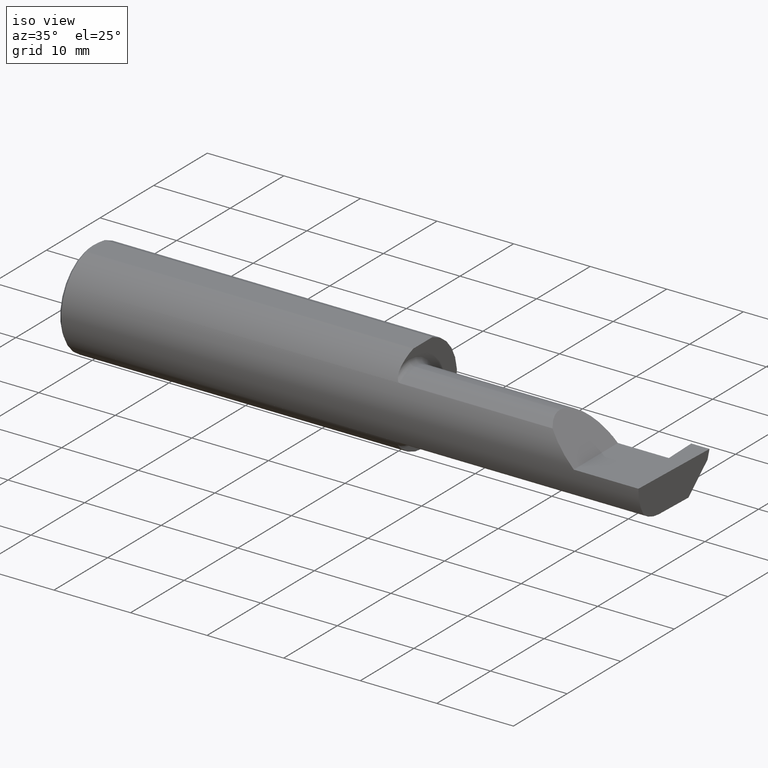
[diagram: clean part render]
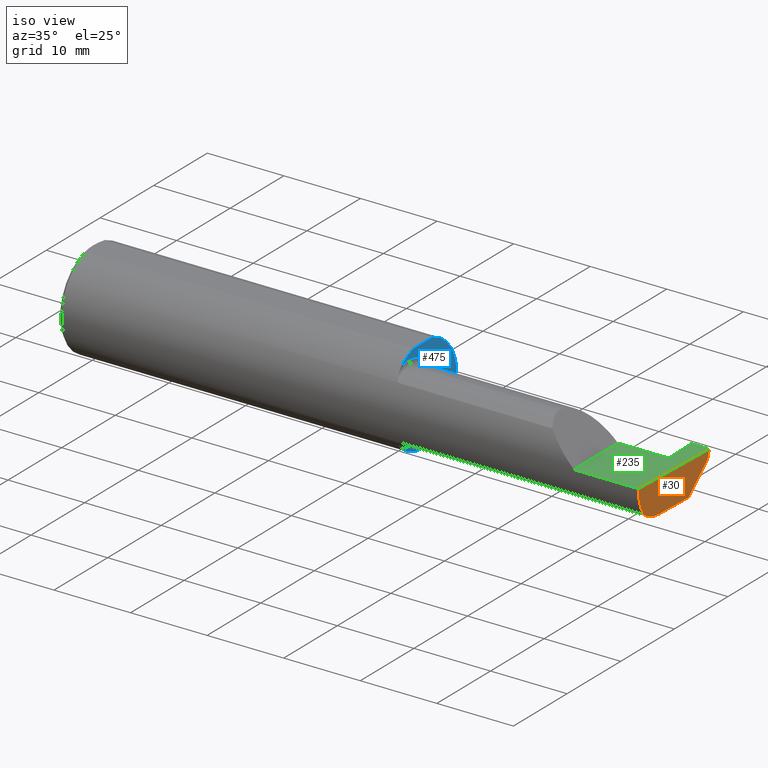
[diagram: same view with three faces highlighted in distinct colors, each labeled with its STEP entity id]
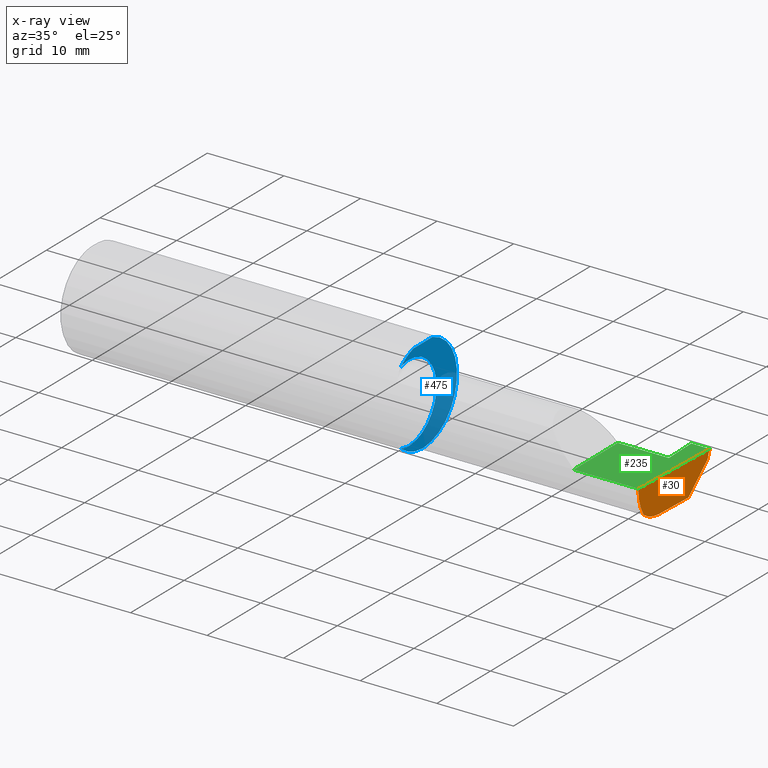
[diagram: x-ray of the same camera — body ghosted, the three highlighted faces saturated]
A machine part, iso view with three faces highlighted in distinct colors.
The next image is the same camera in x-ray (body ghosted, the three faces saturated) — at least one of them is partly hidden behind the body in this view.
Their STEP definitions:

[orange] entity #30 — the highlighted planar face has unit normal (-0.999, 0.0349, 0.0262).
#10 = VERTEX_POINT ( 'NONE', #298 ) ;
#16 = ORIENTED_EDGE ( 'NONE', *, *, #224, .F. ) ;
#27 = LINE ( 'NONE', #140, #619 ) ;
#29 = CARTESIAN_POINT ( 'NONE',  ( 2.980479240051444378, -0.2080850024789291652, -0.1382955322609665250 ) ) ;
#30 = ADVANCED_FACE ( 'NONE', ( #419 ), #537, .F. ) ;
#46 = LINE ( 'NONE', #345, #548 ) ;
#53 = VERTEX_POINT ( 'NONE', #120 ) ;
#67 = EDGE_LOOP ( 'NONE', ( #655, #480, #408, #16, #479, #90, #302 ) ) ;
#84 = CARTESIAN_POINT ( 'NONE',  ( 2.982632426700501327, -0.2498495826666993214, -0.0004566631977791965049 ) ) ;
#90 = ORIENTED_EDGE ( 'NONE', *, *, #397, .F. ) ;
#94 = AXIS2_PLACEMENT_3D ( 'NONE', #291, #773, #469 ) ;
#97 = VERTEX_POINT ( 'NONE', #546 ) ;
#109 = DIRECTION ( 'NONE',  ( 0.02616100201822768243, -0.0009135623211515312911, 0.9996573249755575929 ) ) ;
#120 = CARTESIAN_POINT ( 'NONE',  ( 2.982644377562602589, -0.2498499999999999610, 1.813681607540488003E-17 ) ) ;
#140 = CARTESIAN_POINT ( 'NONE',  ( 2.999793790066964672, 0.2455961323656265238, -0.005799112959718751882 ) ) ;
#147 = VECTOR ( 'NONE', #637, 39.37007874015748854 ) ;
#148 = EDGE_CURVE ( 'NONE', #370, #10, #176, .T. ) ;
#149 = DIRECTION ( 'NONE',  ( -0.03432699337968036363, -0.2586665114180216052, -0.9653565628286482347 ) ) ;
#156 = CARTESIAN_POINT ( 'NONE',  ( 2.982660284539054629, -0.2493944837933358694, 2.123502703737254632E-18 ) ) ;
#176 = LINE ( 'NONE', #210, #147 ) ;
#210 = CARTESIAN_POINT ( 'NONE',  ( 2.993019781838999194, 0.1785693626775286258, -0.1750000000000000444 ) ) ;
#218 = CARTESIAN_POINT ( 'NONE',  ( 2.990479469570817006, 0.1058243371481679268, -0.1749999999999999889 ) ) ;
#224 = EDGE_CURVE ( 'NONE', #97, #673, #27, .T. ) ;
#276 = CARTESIAN_POINT ( 'NONE',  ( 2.998364291748493393, 0.2348243371481683328, -0.04599999999999999922 ) ) ;
#287 = CARTESIAN_POINT ( 'NONE',  ( 2.981341028891337785, -0.2497592792593336664, -0.04986346618389509572 ) ) ;
#291 = CARTESIAN_POINT ( 'NONE',  ( 2.994767799596354418, 0.2473327124642303587, -0.1999314649951115241 ) ) ;
#298 = CARTESIAN_POINT ( 'NONE',  ( 2.983262242683407006, -0.1008499999999999674, -0.1749999999999999889 ) ) ;
#302 = ORIENTED_EDGE ( 'NONE', *, *, #684, .F. ) ;
#310 = VECTOR ( 'NONE', #797, 39.37007874015748143 ) ;
#328 = CARTESIAN_POINT ( 'NONE',  ( 2.982632426700501327, -0.2498495826666993214, -0.0004566631977791965049 ) ) ;
#345 = CARTESIAN_POINT ( 'NONE',  ( 2.977412177158956563, -0.2496672875357696664, -0.1999314649951114686 ) ) ;
#365 =( BOUNDED_CURVE ( )  B_SPLINE_CURVE ( 3, ( #758, #402, #287, #84 ),
 .UNSPECIFIED., .F., .T. ) 
 B_SPLINE_CURVE_WITH_KNOTS ( ( 4, 4 ),
 ( 0.05713034791898994463, 0.6418805321922130824 ),
 .UNSPECIFIED. ) 
 CURVE ( )  GEOMETRIC_REPRESENTATION_ITEM ( )  RATIONAL_B_SPLINE_CURVE ( ( 1.000000000000000000, 0.9717080070095575062, 0.9717080070095575062, 1.000000000000000000 ) ) 
 REPRESENTATION_ITEM ( '' )  );
#370 = VERTEX_POINT ( 'NONE', #218 ) ;
#397 = EDGE_CURVE ( 'NONE', #531, #53, #46, .T. ) ;
#402 = CARTESIAN_POINT ( 'NONE',  ( 2.980602402804240381, -0.2354324170447263109, -0.09714751587401684874 ) ) ;
#408 = ORIENTED_EDGE ( 'NONE', *, *, #430, .F. ) ;
#419 = FACE_OUTER_BOUND ( 'NONE', #67, .T. ) ;
#424 = VERTEX_POINT ( 'NONE', #543 ) ;
#430 = EDGE_CURVE ( 'NONE', #673, #370, #612, .T. ) ;
#453 = EDGE_CURVE ( 'NONE', #53, #97, #553, .T. ) ;
#469 = DIRECTION ( 'NONE',  ( -0.03489949670249940100, -0.9993908270190957621, 0.000000000000000000 ) ) ;
#479 = ORIENTED_EDGE ( 'NONE', *, *, #453, .F. ) ;
#480 = ORIENTED_EDGE ( 'NONE', *, *, #148, .F. ) ;
#516 = CARTESIAN_POINT ( 'NONE',  ( 2.981893741990786495, -0.1400387324517231025, -0.1750000000000000167 ) ) ;
#527 = CARTESIAN_POINT ( 'NONE',  ( 2.983262242683407006, -0.1008499999999999674, -0.1749999999999999889 ) ) ;
#531 = VERTEX_POINT ( 'NONE', #328 ) ;
#537 = PLANE ( 'NONE',  #94 ) ;
#543 = CARTESIAN_POINT ( 'NONE',  ( 2.980479240051444378, -0.2080850024789291652, -0.1382955322609665250 ) ) ;
#546 = CARTESIAN_POINT ( 'NONE',  ( 3.000000000000000444, 0.2471499999999999531, -7.549931466865102584E-16 ) ) ;
#548 = VECTOR ( 'NONE', #109, 39.37007874015748854 ) ;
#553 = LINE ( 'NONE', #156, #310 ) ;
#586 = CARTESIAN_POINT ( 'NONE',  ( 2.980931506555613453, -0.1771157075472509779, -0.1623092683844330475 ) ) ;
#597 = CARTESIAN_POINT ( 'NONE',  ( 2.998041052908566595, 0.2295359730721147906, -0.05128836407605352060 ) ) ;
#612 = LINE ( 'NONE', #597, #778 ) ;
#619 = VECTOR ( 'NONE', #149, 39.37007874015748854 ) ;
#637 = DIRECTION ( 'NONE',  ( -0.03489949670249939406, -0.9993908270190957621, 2.445004146800611929E-16 ) ) ;
#655 = ORIENTED_EDGE ( 'NONE', *, *, #698, .T. ) ;
#673 = VERTEX_POINT ( 'NONE', #276 ) ;
#684 = EDGE_CURVE ( 'NONE', #424, #531, #365, .T. ) ;
#698 = EDGE_CURVE ( 'NONE', #424, #10, #709, .T. ) ;
#709 =( BOUNDED_CURVE ( )  B_SPLINE_CURVE ( 3, ( #29, #586, #516, #527 ),
 .UNSPECIFIED., .F., .F. ) 
 B_SPLINE_CURVE_WITH_KNOTS ( ( 4, 4 ),
 ( 0.2675252011803429530, 0.9270880441442505004 ),
 .UNSPECIFIED. ) 
 CURVE ( )  GEOMETRIC_REPRESENTATION_ITEM ( )  RATIONAL_B_SPLINE_CURVE ( ( 1.000000000000000000, 0.9640754331822828371, 0.9640754331822828371, 1.000000000000000000 ) ) 
 REPRESENTATION_ITEM ( '' )  );
#710 = DIRECTION ( 'NONE',  ( -0.04317993108637931121, -0.7064472710512011977, -0.7064472710511988662 ) ) ;
#758 = CARTESIAN_POINT ( 'NONE',  ( 2.980479240051444378, -0.2080850024789291652, -0.1382955322609665250 ) ) ;
#773 = DIRECTION ( 'NONE',  ( -0.9990483607430196145, 0.03488753751661385211, 0.02617694830785935456 ) ) ;
#778 = VECTOR ( 'NONE', #710, 39.37007874015748854 ) ;
#797 = DIRECTION ( 'NONE',  ( 0.03489949670249940794, 0.9993908270190957621, -4.452728370532699971E-18 ) ) ;

[blue] entity #475 — the highlighted planar face has unit normal (1, 0, 0).
#26 = DIRECTION ( 'NONE',  ( -0.000000000000000000, 1.000000000000000000, 0.000000000000000000 ) ) ;
#44 = VERTEX_POINT ( 'NONE', #315 ) ;
#82 = DIRECTION ( 'NONE',  ( 0.000000000000000000, 0.000000000000000000, 1.000000000000000000 ) ) ;
#92 = CARTESIAN_POINT ( 'NONE',  ( 1.700000000000000178, 0.2741499999999999493, 0.000000000000000000 ) ) ;
#110 = DIRECTION ( 'NONE',  ( 0.000000000000000000, 0.000000000000000000, -1.000000000000000000 ) ) ;
#115 = CIRCLE ( 'NONE', #195, 0.2498499999999999888 ) ;
#118 = AXIS2_PLACEMENT_3D ( 'NONE', #609, #230, #244 ) ;
#138 = EDGE_CURVE ( 'NONE', #142, #219, #312, .T. ) ;
#142 = VERTEX_POINT ( 'NONE', #369 ) ;
#143 = CARTESIAN_POINT ( 'NONE',  ( 1.700000000000000178, -0.2498499999999999888, 0.2398500000000000076 ) ) ;
#160 = DIRECTION ( 'NONE',  ( 1.000000000000000000, 0.000000000000000000, 0.000000000000000000 ) ) ;
#180 = VECTOR ( 'NONE', #26, 39.37007874015748143 ) ;
#195 = AXIS2_PLACEMENT_3D ( 'NONE', #432, #675, #313 ) ;
#200 = AXIS2_PLACEMENT_3D ( 'NONE', #763, #688, #82 ) ;
#207 = VERTEX_POINT ( 'NONE', #750 ) ;
#219 = VERTEX_POINT ( 'NONE', #643 ) ;
#226 = AXIS2_PLACEMENT_3D ( 'NONE', #92, #160, #504 ) ;
#230 = DIRECTION ( 'NONE',  ( -1.000000000000000000, -0.000000000000000000, -0.000000000000000000 ) ) ;
#232 = AXIS2_PLACEMENT_3D ( 'NONE', #754, #450, #629 ) ;
#239 = CARTESIAN_POINT ( 'NONE',  ( 1.700000000000000178, 0.000000000000000000, 0.000000000000000000 ) ) ;
#243 = ORIENTED_EDGE ( 'NONE', *, *, #714, .F. ) ;
#244 = DIRECTION ( 'NONE',  ( 0.000000000000000000, 0.000000000000000000, 1.000000000000000000 ) ) ;
#250 = EDGE_CURVE ( 'NONE', #44, #207, #363, .T. ) ;
#273 = EDGE_LOOP ( 'NONE', ( #284, #243, #659, #521, #422, #364 ) ) ;
#284 = ORIENTED_EDGE ( 'NONE', *, *, #138, .T. ) ;
#312 = CIRCLE ( 'NONE', #500, 0.2498499999999999888 ) ;
#313 = DIRECTION ( 'NONE',  ( 0.000000000000000000, 0.000000000000000000, -1.000000000000000000 ) ) ;
#315 = CARTESIAN_POINT ( 'NONE',  ( 1.700000000000000178, -0.1616050818046604332, 0.1905487340154980169 ) ) ;
#347 = LINE ( 'NONE', #143, #180 ) ;
#363 = CIRCLE ( 'NONE', #200, 0.1999999999999999833 ) ;
#364 = ORIENTED_EDGE ( 'NONE', *, *, #731, .T. ) ;
#369 = CARTESIAN_POINT ( 'NONE',  ( 1.700000000000000178, -0.1616050818046604332, -0.1905487340154980169 ) ) ;
#412 = FACE_OUTER_BOUND ( 'NONE', #273, .T. ) ;
#422 = ORIENTED_EDGE ( 'NONE', *, *, #584, .T. ) ;
#432 = CARTESIAN_POINT ( 'NONE',  ( 1.700000000000000178, 0.000000000000000000, 0.000000000000000000 ) ) ;
#441 = EDGE_CURVE ( 'NONE', #590, #44, #115, .T. ) ;
#450 = DIRECTION ( 'NONE',  ( -1.000000000000000000, -0.000000000000000000, -0.000000000000000000 ) ) ;
#475 = ADVANCED_FACE ( 'NONE', ( #412 ), #653, .T. ) ;
#478 = CIRCLE ( 'NONE', #232, 0.1999999999999999833 ) ;
#485 = DIRECTION ( 'NONE',  ( 1.000000000000000000, 0.000000000000000000, 0.000000000000000000 ) ) ;
#500 = AXIS2_PLACEMENT_3D ( 'NONE', #239, #485, #110 ) ;
#504 = DIRECTION ( 'NONE',  ( 0.000000000000000000, 0.000000000000000000, -1.000000000000000000 ) ) ;
#521 = ORIENTED_EDGE ( 'NONE', *, *, #250, .T. ) ;
#567 = CARTESIAN_POINT ( 'NONE',  ( 1.700000000000000178, -0.06997856814768374512, 0.2398500000000000076 ) ) ;
#584 = EDGE_CURVE ( 'NONE', #207, #677, #478, .T. ) ;
#590 = VERTEX_POINT ( 'NONE', #567 ) ;
#609 = CARTESIAN_POINT ( 'NONE',  ( 1.700000000000000178, -0.1008499999999999674, 0.000000000000000000 ) ) ;
#629 = DIRECTION ( 'NONE',  ( 0.000000000000000000, 0.000000000000000000, 1.000000000000000000 ) ) ;
#643 = CARTESIAN_POINT ( 'NONE',  ( 1.700000000000000178, 0.06997856814768360634, 0.2398500000000000076 ) ) ;
#653 = PLANE ( 'NONE',  #226 ) ;
#659 = ORIENTED_EDGE ( 'NONE', *, *, #441, .T. ) ;
#675 = DIRECTION ( 'NONE',  ( 1.000000000000000000, 0.000000000000000000, 0.000000000000000000 ) ) ;
#677 = VERTEX_POINT ( 'NONE', #762 ) ;
#688 = DIRECTION ( 'NONE',  ( -1.000000000000000000, -0.000000000000000000, -0.000000000000000000 ) ) ;
#714 = EDGE_CURVE ( 'NONE', #590, #219, #347, .T. ) ;
#731 = EDGE_CURVE ( 'NONE', #677, #142, #738, .T. ) ;
#738 = CIRCLE ( 'NONE', #118, 0.1999999999999999833 ) ;
#750 = CARTESIAN_POINT ( 'NONE',  ( 1.700000000000000178, -0.1008499999999999674, 0.1999999999999999833 ) ) ;
#754 = CARTESIAN_POINT ( 'NONE',  ( 1.700000000000000178, -0.1008499999999999674, 0.000000000000000000 ) ) ;
#762 = CARTESIAN_POINT ( 'NONE',  ( 1.700000000000000178, -0.1008499999999999536, -0.1999999999999999833 ) ) ;
#763 = CARTESIAN_POINT ( 'NONE',  ( 1.700000000000000178, -0.1008499999999999674, 0.000000000000000000 ) ) ;

[green] entity #235 — the highlighted planar face has unit normal (-0, 0, -1).
#12 = DIRECTION ( 'NONE',  ( -1.000000000000000000, 0.000000000000000000, 1.224646799147351482E-16 ) ) ;
#41 = ORIENTED_EDGE ( 'NONE', *, *, #108, .F. ) ;
#53 = VERTEX_POINT ( 'NONE', #120 ) ;
#54 = DIRECTION ( 'NONE',  ( 1.000000000000000000, 0.000000000000000000, 0.000000000000000000 ) ) ;
#79 = PLANE ( 'NONE',  #704 ) ;
#83 = VERTEX_POINT ( 'NONE', #261 ) ;
#97 = VERTEX_POINT ( 'NONE', #546 ) ;
#99 = VERTEX_POINT ( 'NONE', #499 ) ;
#103 = VECTOR ( 'NONE', #125, 39.37007874015748143 ) ;
#108 = EDGE_CURVE ( 'NONE', #99, #651, #490, .T. ) ;
#120 = CARTESIAN_POINT ( 'NONE',  ( 2.982644377562602589, -0.2498499999999999610, 1.813681607540488003E-17 ) ) ;
#125 = DIRECTION ( 'NONE',  ( -0.000000000000000000, 1.000000000000000000, -0.000000000000000000 ) ) ;
#135 = VECTOR ( 'NONE', #335, 39.37007874015748143 ) ;
#156 = CARTESIAN_POINT ( 'NONE',  ( 2.982660284539054629, -0.2493944837933358694, 2.123502703737254632E-18 ) ) ;
#168 = ORIENTED_EDGE ( 'NONE', *, *, #453, .T. ) ;
#192 = ORIENTED_EDGE ( 'NONE', *, *, #198, .F. ) ;
#198 = EDGE_CURVE ( 'NONE', #53, #99, #589, .T. ) ;
#199 = CARTESIAN_POINT ( 'NONE',  ( 3.000000000000000444, 0.07414999999999991043, 7.431225809576783727E-33 ) ) ;
#235 = ADVANCED_FACE ( 'NONE', ( #447 ), #79, .F. ) ;
#242 = VECTOR ( 'NONE', #54, 39.37007874015748143 ) ;
#249 = CARTESIAN_POINT ( 'NONE',  ( 2.825000000000000178, 0.2471500000000000086, -3.306546357697639493E-19 ) ) ;
#257 = ORIENTED_EDGE ( 'NONE', *, *, #645, .T. ) ;
#261 = CARTESIAN_POINT ( 'NONE',  ( 2.912037608447156423, 0.07414999999999995206, 5.386143063026812378E-18 ) ) ;
#288 = VECTOR ( 'NONE', #338, 39.37007874015748854 ) ;
#310 = VECTOR ( 'NONE', #797, 39.37007874015748143 ) ;
#317 = VECTOR ( 'NONE', #558, 39.37007874015748143 ) ;
#335 = DIRECTION ( 'NONE',  ( -1.000000000000000000, -0.000000000000000000, -0.000000000000000000 ) ) ;
#338 = DIRECTION ( 'NONE',  ( 0.03487823687994805882, -0.9993915692020550745, -4.266149715957534195E-18 ) ) ;
#353 = LINE ( 'NONE', #713, #288 ) ;
#355 = CARTESIAN_POINT ( 'NONE',  ( 1.700000000000000178, 0.07414999999999997982, 1.592040838891556384E-16 ) ) ;
#360 = EDGE_CURVE ( 'NONE', #651, #476, #730, .T. ) ;
#379 = ORIENTED_EDGE ( 'NONE', *, *, #360, .F. ) ;
#401 = VERTEX_POINT ( 'NONE', #671 ) ;
#404 = CARTESIAN_POINT ( 'NONE',  ( 3.000000000000000444, -0.2500000000000000555, 0.000000000000000000 ) ) ;
#435 = LINE ( 'NONE', #249, #720 ) ;
#444 = LINE ( 'NONE', #199, #317 ) ;
#445 = ORIENTED_EDGE ( 'NONE', *, *, #525, .T. ) ;
#447 = FACE_OUTER_BOUND ( 'NONE', #487, .T. ) ;
#453 = EDGE_CURVE ( 'NONE', #53, #97, #553, .T. ) ;
#476 = VERTEX_POINT ( 'NONE', #743 ) ;
#487 = EDGE_LOOP ( 'NONE', ( #192, #168, #668, #257, #445, #379, #41 ) ) ;
#490 = LINE ( 'NONE', #563, #103 ) ;
#493 = DIRECTION ( 'NONE',  ( 1.000000000000000000, -0.000000000000000000, -0.000000000000000000 ) ) ;
#499 = CARTESIAN_POINT ( 'NONE',  ( 2.650000000000000355, -0.2498499999999999610, 4.286263797015727350E-17 ) ) ;
#517 = CARTESIAN_POINT ( 'NONE',  ( 4.499279347985559139E-32, -0.2498499999999999610, 3.673940397442053459E-16 ) ) ;
#525 = EDGE_CURVE ( 'NONE', #83, #476, #444, .T. ) ;
#545 = EDGE_CURVE ( 'NONE', #401, #97, #435, .T. ) ;
#546 = CARTESIAN_POINT ( 'NONE',  ( 3.000000000000000444, 0.2471499999999999531, -7.549931466865102584E-16 ) ) ;
#553 = LINE ( 'NONE', #156, #310 ) ;
#558 = DIRECTION ( 'NONE',  ( -1.000000000000000000, -1.871990241922592797E-16, 1.224646799147351482E-16 ) ) ;
#563 = CARTESIAN_POINT ( 'NONE',  ( 2.650000000000000355, -0.2500000000000000555, 4.286263797015727350E-17 ) ) ;
#581 = CARTESIAN_POINT ( 'NONE',  ( 2.650000000000000355, 0.07414999999999997982, 4.286263797015727350E-17 ) ) ;
#589 = LINE ( 'NONE', #517, #135 ) ;
#645 = EDGE_CURVE ( 'NONE', #401, #83, #353, .T. ) ;
#647 = DIRECTION ( 'NONE',  ( -1.224646799147351482E-16, 0.000000000000000000, -1.000000000000000000 ) ) ;
#651 = VERTEX_POINT ( 'NONE', #581 ) ;
#668 = ORIENTED_EDGE ( 'NONE', *, *, #545, .F. ) ;
#671 = CARTESIAN_POINT ( 'NONE',  ( 2.906000000000000139, 0.2471500000000000086, -3.306546357697639493E-19 ) ) ;
#704 = AXIS2_PLACEMENT_3D ( 'NONE', #404, #647, #12 ) ;
#713 = CARTESIAN_POINT ( 'NONE',  ( 2.923443515640288037, -0.2526717807899120372, 9.375465352509560635E-18 ) ) ;
#720 = VECTOR ( 'NONE', #493, 39.37007874015748143 ) ;
#730 = LINE ( 'NONE', #355, #242 ) ;
#743 = CARTESIAN_POINT ( 'NONE',  ( 2.906000000000000139, 0.07414999999999999369, 1.592042583500711384E-16 ) ) ;
#797 = DIRECTION ( 'NONE',  ( 0.03489949670249940794, 0.9993908270190957621, -4.452728370532699971E-18 ) ) ;